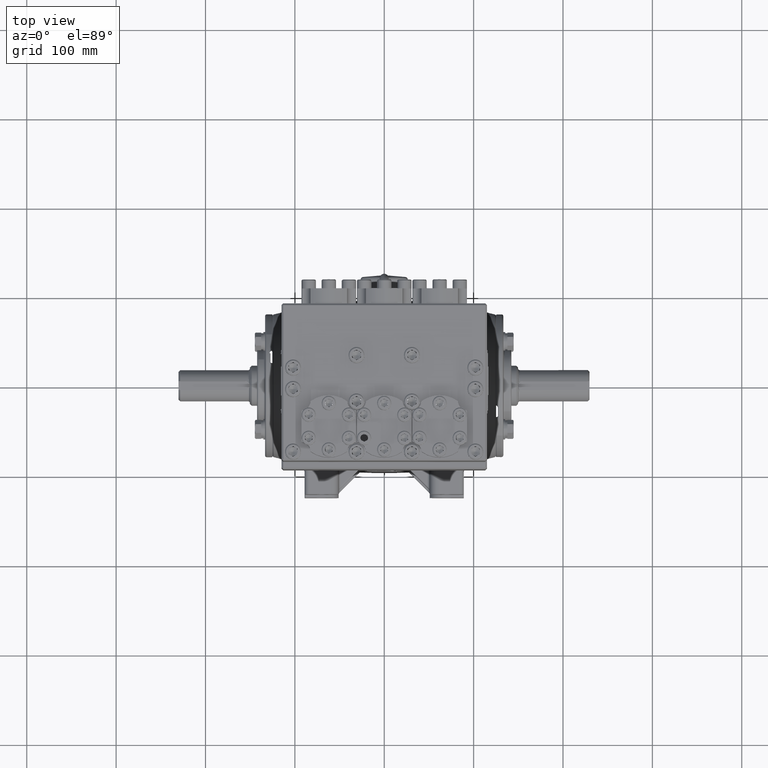
[diagram: clean part render]
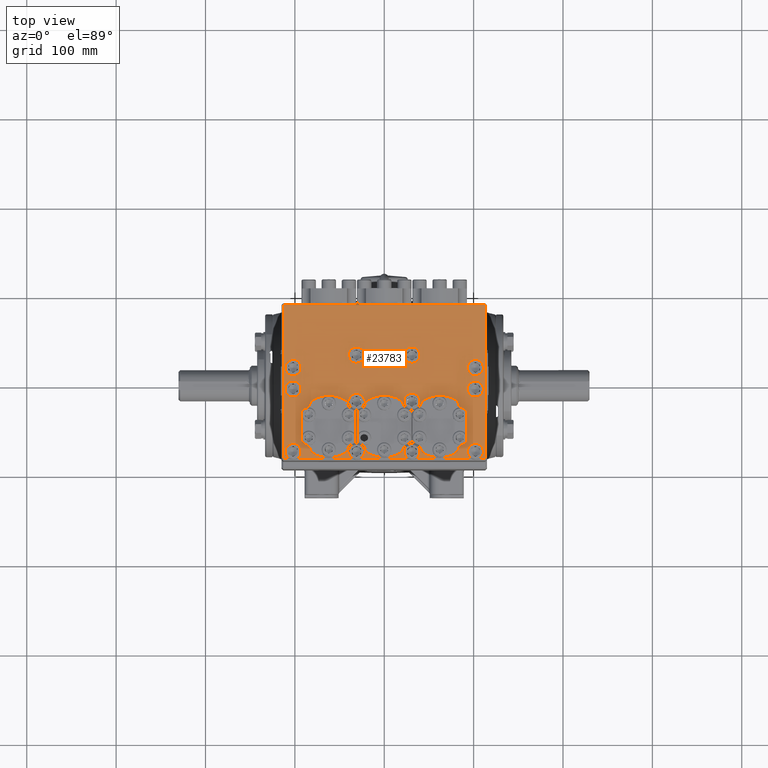
[diagram: same view with one face highlighted and labeled with its STEP entity id]
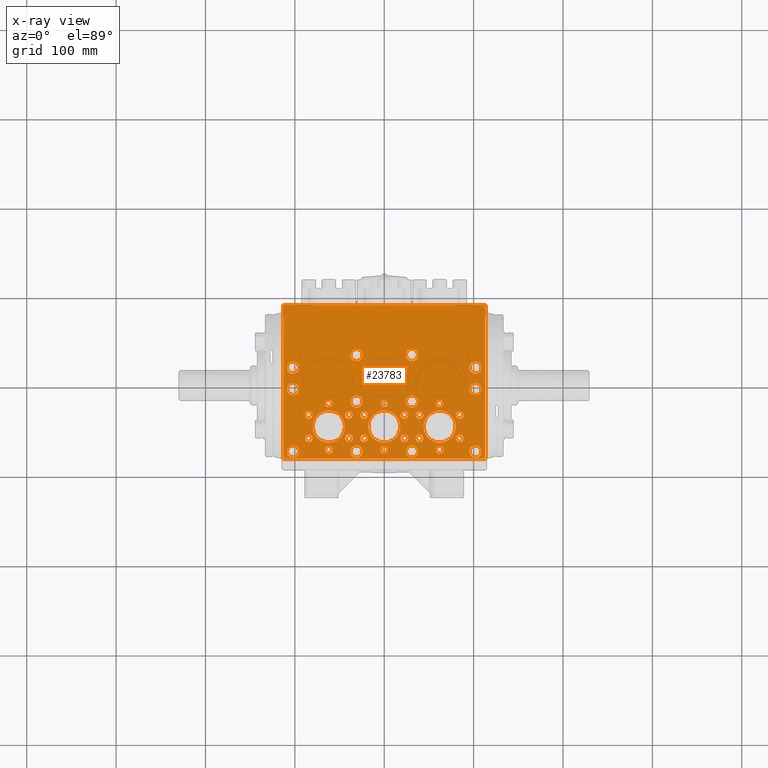
[diagram: x-ray of the same camera — body ghosted, the highlighted face saturated]
A machine part, top view. The second image highlights one B-rep face of the part: STEP entity #23783.
The next image is the same camera in x-ray: the body ghosted, the highlighted face saturated — about 0% of this face is hidden behind the body in this view.
In plain terms, the highlighted planar face has unit normal (0, 0, -1).
Its self-contained STEP definition (entity closure, byte-faithful):
#161 = VERTEX_POINT ( 'NONE', #108625 ) ;
#357 = EDGE_CURVE ( 'NONE', #52274, #112414, #93687, .T. ) ;
#363 = EDGE_LOOP ( 'NONE', ( #119264, #63017 ) ) ;
#537 = CIRCLE ( 'NONE', #69821, 0.7066929133858244061 ) ;
#617 = VECTOR ( 'NONE', #60796, 39.37007874015748143 ) ;
#685 = VERTEX_POINT ( 'NONE', #113962 ) ;
#868 = CARTESIAN_POINT ( 'NONE',  ( -1.554462185102545080, -2.637795275590553157, 18.66141732283464805 ) ) ;
#1078 = DIRECTION ( 'NONE',  ( -0.0000000000000000000, -0.0000000000000000000, 1.000000000000000000 ) ) ;
#1358 = DIRECTION ( 'NONE',  ( 0.0000000000000000000, 0.0000000000000000000, -1.000000000000000000 ) ) ;
#1406 = EDGE_CURVE ( 'NONE', #20298, #20736, #77539, .T. ) ;
#1628 = CARTESIAN_POINT ( 'NONE',  ( 4.281496062992125928, -3.228346456692912092, 18.66141732283464805 ) ) ;
#2121 = FACE_BOUND ( 'NONE', #120004, .T. ) ;
#2333 = ORIENTED_EDGE ( 'NONE', *, *, #103795, .F. ) ;
#2734 = FACE_BOUND ( 'NONE', #363, .T. ) ;
#3094 = CIRCLE ( 'NONE', #72360, 0.2657480314960625756 ) ;
#3340 = FACE_BOUND ( 'NONE', #40935, .T. ) ;
#3711 = ORIENTED_EDGE ( 'NONE', *, *, #6407, .F. ) ;
#3895 = VERTEX_POINT ( 'NONE', #65356 ) ;
#3914 = EDGE_CURVE ( 'NONE', #79926, #72712, #28242, .T. ) ;
#3994 = CARTESIAN_POINT ( 'NONE',  ( -4.281496062992125928, -0.4724409448818881474, 18.66141732283464805 ) ) ;
#4007 = VERTEX_POINT ( 'NONE', #114191 ) ;
#4056 = DIRECTION ( 'NONE',  ( -0.0000000000000000000, -0.0000000000000000000, 1.000000000000000000 ) ) ;
#4133 = LINE ( 'NONE', #41918, #103971 ) ;
#4289 = VERTEX_POINT ( 'NONE', #109616 ) ;
#4294 = ORIENTED_EDGE ( 'NONE', *, *, #76617, .F. ) ;
#5162 = EDGE_CURVE ( 'NONE', #115657, #79307, #102046, .T. ) ;
#5244 = CARTESIAN_POINT ( 'NONE',  ( 4.015748031496062076, 0.4724409448818914226, 18.66141732283464805 ) ) ;
#5315 = EDGE_LOOP ( 'NONE', ( #86806, #96678 ) ) ;
#5573 = DIRECTION ( 'NONE',  ( 1.000000000000000000, 0.0000000000000000000, 0.0000000000000000000 ) ) ;
#5626 = VERTEX_POINT ( 'NONE', #60654 ) ;
#6124 = ORIENTED_EDGE ( 'NONE', *, *, #66429, .F. ) ;
#6407 = EDGE_CURVE ( 'NONE', #50504, #111528, #60781, .T. ) ;
#6726 = DIRECTION ( 'NONE',  ( -0.0000000000000000000, -0.0000000000000000000, 1.000000000000000000 ) ) ;
#7185 = AXIS2_PLACEMENT_3D ( 'NONE', #119656, #34859, #72689 ) ;
#7414 = EDGE_CURVE ( 'NONE', #20736, #20298, #112345, .T. ) ;
#7607 = CARTESIAN_POINT ( 'NONE',  ( 0.9547244094488195332, -1.023622047244092892, 18.66141732283464805 ) ) ;
#7675 = AXIS2_PLACEMENT_3D ( 'NONE', #99893, #15011, #52813 ) ;
#7721 = CIRCLE ( 'NONE', #77026, 0.2657480314960625756 ) ;
#7844 = CARTESIAN_POINT ( 'NONE',  ( -3.750000000000000888, -0.4724409448818881474, 18.66141732283464805 ) ) ;
#7943 = AXIS2_PLACEMENT_3D ( 'NONE', #44399, #82242, #119885 ) ;
#8226 = CARTESIAN_POINT ( 'NONE',  ( -3.327427578676981579, -1.614173228346451161, 18.66141732283464805 ) ) ;
#8278 = ORIENTED_EDGE ( 'NONE', *, *, #11105, .F. ) ;
#8713 = CIRCLE ( 'NONE', #78006, 0.1673228346456689108 ) ;
#8751 = DIRECTION ( 'NONE',  ( -0.0000000000000000000, -0.0000000000000000000, 1.000000000000000000 ) ) ;
#8905 = CARTESIAN_POINT ( 'NONE',  ( -4.527559055118110187, -3.543307086614170931, 18.66141732283464805 ) ) ;
#9046 = EDGE_CURVE ( 'NONE', #15250, #685, #93789, .T. ) ;
#9426 = CARTESIAN_POINT ( 'NONE',  ( 4.015748031496062076, 0.4724409448818914226, 18.66141732283464805 ) ) ;
#9481 = EDGE_LOOP ( 'NONE', ( #75989, #29461 ) ) ;
#9658 = ORIENTED_EDGE ( 'NONE', *, *, #3914, .F. ) ;
#9747 = FACE_BOUND ( 'NONE', #34470, .T. ) ;
#10127 = ORIENTED_EDGE ( 'NONE', *, *, #76837, .F. ) ;
#10198 = DIRECTION ( 'NONE',  ( -0.0000000000000000000, -0.0000000000000000000, 1.000000000000000000 ) ) ;
#10320 = CARTESIAN_POINT ( 'NONE',  ( -3.327427578676985576, -2.637795275590547384, 18.66141732283464805 ) ) ;
#10419 = ORIENTED_EDGE ( 'NONE', *, *, #68227, .F. ) ;
#10468 = AXIS2_PLACEMENT_3D ( 'NONE', #97413, #12528, #50321 ) ;
#10609 = EDGE_CURVE ( 'NONE', #47791, #118664, #57403, .T. ) ;
#10711 = VERTEX_POINT ( 'NONE', #121926 ) ;
#11006 = EDGE_CURVE ( 'NONE', #50523, #97440, #29603, .T. ) ;
#11088 = EDGE_CURVE ( 'NONE', #72712, #79926, #76378, .T. ) ;
#11105 = EDGE_CURVE ( 'NONE', #39480, #161, #70449, .T. ) ;
#11297 = CARTESIAN_POINT ( 'NONE',  ( -1.486220472440944240, -3.228346456692912092, 18.66141732283464805 ) ) ;
#11390 = CARTESIAN_POINT ( 'NONE',  ( 4.015748031496062964, -3.228346456692912092, 18.66141732283464805 ) ) ;
#11905 = DIRECTION ( 'NONE',  ( -0.0000000000000000000, -0.0000000000000000000, 1.000000000000000000 ) ) ;
#12036 = FACE_BOUND ( 'NONE', #103052, .T. ) ;
#12528 = DIRECTION ( 'NONE',  ( -0.0000000000000000000, -0.0000000000000000000, 1.000000000000000000 ) ) ;
#12567 = EDGE_LOOP ( 'NONE', ( #39509, #105780 ) ) ;
#12645 = FACE_BOUND ( 'NONE', #45721, .T. ) ;
#12692 = CARTESIAN_POINT ( 'NONE',  ( 4.281496062992125040, 0.4724409448818914226, 18.66141732283464805 ) ) ;
#12848 = ORIENTED_EDGE ( 'NONE', *, *, #60742, .F. ) ;
#12940 = CIRCLE ( 'NONE', #82233, 0.1673228346456691606 ) ;
#13237 = DIRECTION ( 'NONE',  ( 1.000000000000000000, 0.0000000000000000000, 0.0000000000000000000 ) ) ;
#13586 = CARTESIAN_POINT ( 'NONE',  ( -2.608267716535432879, -3.149606299212596827, 18.66141732283464805 ) ) ;
#13723 = CARTESIAN_POINT ( 'NONE',  ( -4.015748031496062964, -0.4724409448818881474, 18.66141732283464805 ) ) ;
#13781 = EDGE_LOOP ( 'NONE', ( #92851, #56275 ) ) ;
#14293 = EDGE_CURVE ( 'NONE', #161, #39480, #97913, .T. ) ;
#14529 = EDGE_CURVE ( 'NONE', #4007, #18471, #119644, .T. ) ;
#14836 = EDGE_CURVE ( 'NONE', #95573, #26108, #84237, .T. ) ;
#14850 = VERTEX_POINT ( 'NONE', #76522 ) ;
#15011 = DIRECTION ( 'NONE',  ( -0.0000000000000000000, -0.0000000000000000000, 1.000000000000000000 ) ) ;
#15019 = AXIS2_PLACEMENT_3D ( 'NONE', #67686, #105424, #20572 ) ;
#15093 = CIRCLE ( 'NONE', #84377, 0.1673228346456691606 ) ;
#15148 = ORIENTED_EDGE ( 'NONE', *, *, #11006, .F. ) ;
#15197 = EDGE_CURVE ( 'NONE', #23354, #73191, #28851, .T. ) ;
#15250 = VERTEX_POINT ( 'NONE', #49065 ) ;
#15293 = DIRECTION ( 'NONE',  ( -1.000000000000000000, 0.0000000000000000000, 0.0000000000000000000 ) ) ;
#15480 = EDGE_LOOP ( 'NONE', ( #41800, #117904 ) ) ;
#15627 = CARTESIAN_POINT ( 'NONE',  ( -2.273622047244094446, -1.102362204724407935, 18.66141732283464805 ) ) ;
#15784 = VERTEX_POINT ( 'NONE', #31853 ) ;
#15928 = CARTESIAN_POINT ( 'NONE',  ( 1.387139350456876752, -2.637795275590553157, 18.66141732283464805 ) ) ;
#15948 = CARTESIAN_POINT ( 'NONE',  ( 3.494750413322655902, -2.637795275590546940, 18.66141732283464805 ) ) ;
#16151 = CIRCLE ( 'NONE', #85452, 0.7066929133858276257 ) ;
#16466 = CARTESIAN_POINT ( 'NONE',  ( 4.281496062992125040, -0.4724409448818881474, 18.66141732283464805 ) ) ;
#16804 = CIRCLE ( 'NONE', #86106, 0.2657480314960626866 ) ;
#17134 = EDGE_LOOP ( 'NONE', ( #69885, #42550 ) ) ;
#17251 = EDGE_LOOP ( 'NONE', ( #86509, #77207 ) ) ;
#17513 = DIRECTION ( 'NONE',  ( -0.0000000000000000000, -0.0000000000000000000, 1.000000000000000000 ) ) ;
#17720 = DIRECTION ( 'NONE',  ( -0.0000000000000000000, -0.0000000000000000000, 1.000000000000000000 ) ) ;
#17725 = ORIENTED_EDGE ( 'NONE', *, *, #54727, .F. ) ;
#17760 = VERTEX_POINT ( 'NONE', #65525 ) ;
#17951 = CARTESIAN_POINT ( 'NONE',  ( -1.220472440944881942, -1.023622047244092892, 18.66141732283464805 ) ) ;
#17970 = DIRECTION ( 'NONE',  ( -0.0000000000000000000, -0.0000000000000000000, 1.000000000000000000 ) ) ;
#18027 = DIRECTION ( 'NONE',  ( -0.0000000000000000000, -0.0000000000000000000, 1.000000000000000000 ) ) ;
#18125 = VERTEX_POINT ( 'NONE', #103115 ) ;
#18226 = DIRECTION ( 'NONE',  ( -0.0000000000000000000, -0.0000000000000000000, 1.000000000000000000 ) ) ;
#18240 = DIRECTION ( 'NONE',  ( -0.0000000000000000000, -0.0000000000000000000, 1.000000000000000000 ) ) ;
#18382 = CIRCLE ( 'NONE', #87705, 0.7066929133858276257 ) ;
#18471 = VERTEX_POINT ( 'NONE', #91876 ) ;
#18560 = DIRECTION ( 'NONE',  ( -0.0000000000000000000, -0.0000000000000000000, 1.000000000000000000 ) ) ;
#18837 = AXIS2_PLACEMENT_3D ( 'NONE', #66754, #104495, #19640 ) ;
#19228 = DIRECTION ( 'NONE',  ( -0.0000000000000000000, -0.0000000000000000000, 1.000000000000000000 ) ) ;
#19640 = DIRECTION ( 'NONE',  ( 1.000000000000000000, 0.0000000000000000000, 0.0000000000000000000 ) ) ;
#19681 = DIRECTION ( 'NONE',  ( 1.000000000000000000, 0.0000000000000000000, 0.0000000000000000000 ) ) ;
#19715 = ORIENTED_EDGE ( 'NONE', *, *, #32558, .F. ) ;
#20276 = VERTEX_POINT ( 'NONE', #87695 ) ;
#20298 = VERTEX_POINT ( 'NONE', #116067 ) ;
#20516 = DIRECTION ( 'NONE',  ( 1.000000000000000000, 0.0000000000000000000, 0.0000000000000000000 ) ) ;
#20572 = DIRECTION ( 'NONE',  ( 1.000000000000000000, 0.0000000000000000000, 0.0000000000000000000 ) ) ;
#20685 = EDGE_CURVE ( 'NONE', #103901, #39622, #92776, .T. ) ;
#20728 = DIRECTION ( 'NONE',  ( 1.000000000000000000, 0.0000000000000000000, 0.0000000000000000000 ) ) ;
#20736 = VERTEX_POINT ( 'NONE', #15627 ) ;
#20919 = EDGE_CURVE ( 'NONE', #78380, #30086, #27226, .T. ) ;
#21326 = DIRECTION ( 'NONE',  ( 1.000000000000000000, 0.0000000000000000000, 0.0000000000000000000 ) ) ;
#21334 = FACE_BOUND ( 'NONE', #53406, .T. ) ;
#21471 = EDGE_CURVE ( 'NONE', #30155, #46605, #37040, .T. ) ;
#21561 = CARTESIAN_POINT ( 'NONE',  ( -6.227907111816682807E-17, -2.125984251968502381, 18.66141732283464805 ) ) ;
#21606 = DIRECTION ( 'NONE',  ( 1.000000000000000000, 0.0000000000000000000, 0.0000000000000000000 ) ) ;
#21629 = DIRECTION ( 'NONE',  ( -0.0000000000000000000, -0.0000000000000000000, 1.000000000000000000 ) ) ;
#21937 = FACE_BOUND ( 'NONE', #118184, .T. ) ;
#22166 = DIRECTION ( 'NONE',  ( -1.000000000000000000, 0.0000000000000000000, 0.0000000000000000000 ) ) ;
#22194 = AXIS2_PLACEMENT_3D ( 'NONE', #29299, #67132, #104874 ) ;
#22298 = CIRCLE ( 'NONE', #91568, 0.2657480314960626866 ) ;
#22545 = DIRECTION ( 'NONE',  ( -1.000000000000000000, 0.0000000000000000000, -0.0000000000000000000 ) ) ;
#22686 = CIRCLE ( 'NONE', #91948, 0.1673228346456691606 ) ;
#22778 = CARTESIAN_POINT ( 'NONE',  ( -3.160104744031312585, -1.614173228346451161, 18.66141732283464805 ) ) ;
#22905 = AXIS2_PLACEMENT_3D ( 'NONE', #24626, #62456, #100222 ) ;
#22975 = CARTESIAN_POINT ( 'NONE',  ( 4.448818897637796255, 3.307086614173230465, 18.66141732283464805 ) ) ;
#23201 = VERTEX_POINT ( 'NONE', #110829 ) ;
#23307 = EDGE_CURVE ( 'NONE', #30086, #78380, #28763, .T. ) ;
#23354 = VERTEX_POINT ( 'NONE', #113293 ) ;
#23413 = DIRECTION ( 'NONE',  ( -0.0000000000000000000, -0.0000000000000000000, 1.000000000000000000 ) ) ;
#23619 = DIRECTION ( 'NONE',  ( -0.0000000000000000000, -0.0000000000000000000, 1.000000000000000000 ) ) ;
#23783 = ADVANCED_FACE ( 'NONE', ( #94638, #9747, #47544, #85371, #2121, #39902, #77748, #115435, #30613, #68449, #106180, #21334, #59138, #96926, #12036, #49831, #87669, #2734, #40520, #78364, #116040, #31218, #69068, #106784, #21937, #59742, #97528, #12645, #50435, #88272, #3340, #41123, #78982, #116644 ), #31839, .F. ) ;
#24626 = CARTESIAN_POINT ( 'NONE',  ( 2.440944881889763884, -3.149606299212596383, 18.66141732283464805 ) ) ;
#25382 = DIRECTION ( 'NONE',  ( 1.000000000000000000, 0.0000000000000000000, 0.0000000000000000000 ) ) ;
#25489 = AXIS2_PLACEMENT_3D ( 'NONE', #120928, #36125, #73968 ) ;
#25704 = CIRCLE ( 'NONE', #94998, 0.7066929133858244061 ) ;
#25963 = AXIS2_PLACEMENT_3D ( 'NONE', #868, #38638, #76485 ) ;
#26108 = VERTEX_POINT ( 'NONE', #70184 ) ;
#26315 = AXIS2_PLACEMENT_3D ( 'NONE', #93643, #8751, #46546 ) ;
#26317 = CARTESIAN_POINT ( 'NONE',  ( 1.486220472440944684, 1.023622047244096001, 18.66141732283464805 ) ) ;
#26401 = CARTESIAN_POINT ( 'NONE',  ( 4.448818897637796255, 3.228346456692915645, 18.66141732283464805 ) ) ;
#26680 = ORIENTED_EDGE ( 'NONE', *, *, #9046, .T. ) ;
#26716 = DIRECTION ( 'NONE',  ( 1.000000000000000000, 0.0000000000000000000, 0.0000000000000000000 ) ) ;
#26754 = AXIS2_PLACEMENT_3D ( 'NONE', #68727, #106447, #21606 ) ;
#26881 = DIRECTION ( 'NONE',  ( 1.000000000000000000, 0.0000000000000000000, 0.0000000000000000000 ) ) ;
#27226 = CIRCLE ( 'NONE', #118141, 0.2657480314960626866 ) ;
#27416 = CIRCLE ( 'NONE', #96704, 0.1673228346456691606 ) ;
#27853 = DIRECTION ( 'NONE',  ( 1.000000000000000000, 0.0000000000000000000, 0.0000000000000000000 ) ) ;
#28242 = CIRCLE ( 'NONE', #59840, 0.1673228346456691606 ) ;
#28557 = DIRECTION ( 'NONE',  ( 0.0000000000000000000, 0.0000000000000000000, -1.000000000000000000 ) ) ;
#28661 = AXIS2_PLACEMENT_3D ( 'NONE', #11390, #49179, #87026 ) ;
#28763 = CIRCLE ( 'NONE', #76456, 0.2657480314960626866 ) ;
#28846 = DIRECTION ( 'NONE',  ( 1.000000000000000000, 0.0000000000000000000, 0.0000000000000000000 ) ) ;
#28851 = CIRCLE ( 'NONE', #60526, 0.2657480314960626866 ) ;
#28956 = EDGE_LOOP ( 'NONE', ( #26680, #102275, #55806, #46518 ) ) ;
#29299 = CARTESIAN_POINT ( 'NONE',  ( 3.327427578676981579, -1.614173228346450273, 18.66141732283464805 ) ) ;
#29452 = CARTESIAN_POINT ( 'NONE',  ( -4.448818897637796255, 3.307086614173230465, 18.66141732283464805 ) ) ;
#29461 = ORIENTED_EDGE ( 'NONE', *, *, #87314, .F. ) ;
#29603 = CIRCLE ( 'NONE', #67233, 0.2657480314960625756 ) ;
#29639 = AXIS2_PLACEMENT_3D ( 'NONE', #66791, #104529, #19681 ) ;
#30086 = VERTEX_POINT ( 'NONE', #34920 ) ;
#30155 = VERTEX_POINT ( 'NONE', #96226 ) ;
#30293 = CARTESIAN_POINT ( 'NONE',  ( 1.486220472440944684, -1.023622047244092892, 18.66141732283464805 ) ) ;
#30310 = EDGE_CURVE ( 'NONE', #111528, #50504, #7721, .T. ) ;
#30478 = EDGE_LOOP ( 'NONE', ( #110466, #91962 ) ) ;
#30613 = FACE_BOUND ( 'NONE', #121099, .T. ) ;
#30635 = AXIS2_PLACEMENT_3D ( 'NONE', #102588, #17720, #55512 ) ;
#30670 = VERTEX_POINT ( 'NONE', #26401 ) ;
#30963 = DIRECTION ( 'NONE',  ( 0.0000000000000000000, 0.0000000000000000000, -1.000000000000000000 ) ) ;
#31112 = CIRCLE ( 'NONE', #116142, 0.1673228346456691606 ) ;
#31218 = FACE_BOUND ( 'NONE', #9481, .T. ) ;
#31359 = CIRCLE ( 'NONE', #100608, 0.1673228346456691606 ) ;
#31839 = PLANE ( 'NONE',  #105939 ) ;
#31853 = CARTESIAN_POINT ( 'NONE',  ( 0.9547244094488195332, -3.228346456692912092, 18.66141732283464805 ) ) ;
#32057 = VERTEX_POINT ( 'NONE', #36182 ) ;
#32059 = EDGE_CURVE ( 'NONE', #44697, #111063, #35650, .T. ) ;
#32174 = AXIS2_PLACEMENT_3D ( 'NONE', #43766, #81615, #119265 ) ;
#32236 = CARTESIAN_POINT ( 'NONE',  ( -4.281496062992125928, -3.228346456692912092, 18.66141732283464805 ) ) ;
#32539 = CARTESIAN_POINT ( 'NONE',  ( -6.227907111816682807E-17, -1.102362204724407935, 18.66141732283464805 ) ) ;
#32558 = EDGE_CURVE ( 'NONE', #10711, #3895, #116794, .T. ) ;
#32947 = DIRECTION ( 'NONE',  ( 1.000000000000000000, 0.0000000000000000000, 0.0000000000000000000 ) ) ;
#33252 = ORIENTED_EDGE ( 'NONE', *, *, #77756, .F. ) ;
#33597 = CARTESIAN_POINT ( 'NONE',  ( 2.273622047244094890, -3.149606299212596383, 18.66141732283464805 ) ) ;
#34092 = CARTESIAN_POINT ( 'NONE',  ( -1.220472440944881942, 1.023622047244096001, 18.66141732283464805 ) ) ;
#34163 = DIRECTION ( 'NONE',  ( -0.0000000000000000000, -0.0000000000000000000, 1.000000000000000000 ) ) ;
#34188 = AXIS2_PLACEMENT_3D ( 'NONE', #13723, #51509, #89344 ) ;
#34269 = DIRECTION ( 'NONE',  ( 1.000000000000000000, 0.0000000000000000000, 0.0000000000000000000 ) ) ;
#34470 = EDGE_LOOP ( 'NONE', ( #69572, #50933 ) ) ;
#34538 = DIRECTION ( 'NONE',  ( -0.0000000000000000000, -0.0000000000000000000, 1.000000000000000000 ) ) ;
#34609 = ORIENTED_EDGE ( 'NONE', *, *, #50153, .F. ) ;
#34826 = CARTESIAN_POINT ( 'NONE',  ( -0.1673228346456689664, -3.149606299212596827, 18.66141732283464805 ) ) ;
#34859 = DIRECTION ( 'NONE',  ( -0.0000000000000000000, -0.0000000000000000000, 1.000000000000000000 ) ) ;
#34920 = CARTESIAN_POINT ( 'NONE',  ( 3.749999999999999556, -0.4724409448818881474, 18.66141732283464805 ) ) ;
#35162 = AXIS2_PLACEMENT_3D ( 'NONE', #102381, #17513, #55316 ) ;
#35226 = CARTESIAN_POINT ( 'NONE',  ( -1.220472440944881942, 1.023622047244096001, 18.66141732283464805 ) ) ;
#35346 = CARTESIAN_POINT ( 'NONE',  ( 2.273622047244094446, -1.102362204724407269, 18.66141732283464805 ) ) ;
#35508 = AXIS2_PLACEMENT_3D ( 'NONE', #86278, #1358, #39138 ) ;
#35650 = CIRCLE ( 'NONE', #104912, 0.2657480314960625756 ) ;
#35789 = AXIS2_PLACEMENT_3D ( 'NONE', #73851, #111557, #26716 ) ;
#35822 = ORIENTED_EDGE ( 'NONE', *, *, #40738, .F. ) ;
#35910 = DIRECTION ( 'NONE',  ( -0.0000000000000000000, -0.0000000000000000000, 1.000000000000000000 ) ) ;
#36125 = DIRECTION ( 'NONE',  ( -0.0000000000000000000, -0.0000000000000000000, 1.000000000000000000 ) ) ;
#36182 = CARTESIAN_POINT ( 'NONE',  ( -3.494750413322655014, -2.637795275590547384, 18.66141732283464805 ) ) ;
#36333 = CARTESIAN_POINT ( 'NONE',  ( -1.486220472440944684, -1.023622047244092892, 18.66141732283464805 ) ) ;
#36497 = CARTESIAN_POINT ( 'NONE',  ( -0.8864826968503936033, -1.614173228346456712, 18.66141732283464805 ) ) ;
#36606 = CIRCLE ( 'NONE', #105849, 0.1673228346456691606 ) ;
#36699 = CARTESIAN_POINT ( 'NONE',  ( -2.440944881889763440, -1.102362204724407935, 18.66141732283464805 ) ) ;
#37040 = CIRCLE ( 'NONE', #108552, 0.1673228346456691606 ) ;
#37100 = AXIS2_PLACEMENT_3D ( 'NONE', #68441, #106171, #21326 ) ;
#37919 = CIRCLE ( 'NONE', #107149, 0.1673228346456691606 ) ;
#38158 = EDGE_CURVE ( 'NONE', #79307, #115657, #97582, .T. ) ;
#38162 = AXIS2_PLACEMENT_3D ( 'NONE', #60342, #98118, #13237 ) ;
#38326 = VERTEX_POINT ( 'NONE', #15928 ) ;
#38459 = CARTESIAN_POINT ( 'NONE',  ( 1.220472440944881942, -1.023622047244092892, 18.66141732283464805 ) ) ;
#38638 = DIRECTION ( 'NONE',  ( -0.0000000000000000000, -0.0000000000000000000, 1.000000000000000000 ) ) ;
#38699 = VERTEX_POINT ( 'NONE', #56001 ) ;
#38777 = CARTESIAN_POINT ( 'NONE',  ( 3.147637795275588068, -2.125984251968502381, 18.66141732283464805 ) ) ;
#38855 = DIRECTION ( 'NONE',  ( 1.000000000000000000, 0.0000000000000000000, 0.0000000000000000000 ) ) ;
#39050 = VERTEX_POINT ( 'NONE', #45340 ) ;
#39138 = DIRECTION ( 'NONE',  ( -1.000000000000000000, 0.0000000000000000000, 0.0000000000000000000 ) ) ;
#39195 = CARTESIAN_POINT ( 'NONE',  ( -0.1673228346456692439, -1.102362204724407935, 18.66141732283464805 ) ) ;
#39480 = VERTEX_POINT ( 'NONE', #1628 ) ;
#39509 = ORIENTED_EDGE ( 'NONE', *, *, #39617, .F. ) ;
#39617 = EDGE_CURVE ( 'NONE', #23201, #5626, #52275, .T. ) ;
#39622 = VERTEX_POINT ( 'NONE', #70391 ) ;
#39755 = CARTESIAN_POINT ( 'NONE',  ( 2.608267716535433323, -3.149606299212596383, 18.66141732283464805 ) ) ;
#39902 = FACE_BOUND ( 'NONE', #5315, .T. ) ;
#40210 = CIRCLE ( 'NONE', #109409, 0.2657480314960624090 ) ;
#40520 = FACE_BOUND ( 'NONE', #41191, .T. ) ;
#40585 = ORIENTED_EDGE ( 'NONE', *, *, #14529, .F. ) ;
#40738 = EDGE_CURVE ( 'NONE', #60366, #45032, #36606, .T. ) ;
#40928 = VERTEX_POINT ( 'NONE', #112394 ) ;
#40935 = EDGE_LOOP ( 'NONE', ( #10127, #78129 ) ) ;
#41123 = FACE_BOUND ( 'NONE', #42519, .T. ) ;
#41191 = EDGE_LOOP ( 'NONE', ( #54307, #120486 ) ) ;
#41546 = AXIS2_PLACEMENT_3D ( 'NONE', #61987, #90487, #5573 ) ;
#41800 = ORIENTED_EDGE ( 'NONE', *, *, #20919, .F. ) ;
#41840 = DIRECTION ( 'NONE',  ( 1.000000000000000000, 0.0000000000000000000, 0.0000000000000000000 ) ) ;
#41918 = CARTESIAN_POINT ( 'NONE',  ( -4.527559055118110187, 3.228346456692915645, 18.66141732283464805 ) ) ;
#42519 = EDGE_LOOP ( 'NONE', ( #3711, #107760 ) ) ;
#42550 = ORIENTED_EDGE ( 'NONE', *, *, #92700, .F. ) ;
#42634 = AXIS2_PLACEMENT_3D ( 'NONE', #103429, #18560, #56365 ) ;
#42708 = ORIENTED_EDGE ( 'NONE', *, *, #120945, .F. ) ;
#43032 = DIRECTION ( 'NONE',  ( -0.0000000000000000000, -0.0000000000000000000, 1.000000000000000000 ) ) ;
#43112 = EDGE_LOOP ( 'NONE', ( #52153, #44675 ) ) ;
#43158 = CARTESIAN_POINT ( 'NONE',  ( -1.721785019748210965, -1.614173228346457156, 18.66141732283464805 ) ) ;
#43535 = CARTESIAN_POINT ( 'NONE',  ( 0.8864826968503939364, -2.637795275590553601, 18.66141732283464805 ) ) ;
#43553 = CIRCLE ( 'NONE', #112775, 0.1673228346456691606 ) ;
#43766 = CARTESIAN_POINT ( 'NONE',  ( 3.327427578676986464, -2.637795275590546940, 18.66141732283464805 ) ) ;
#43815 = CARTESIAN_POINT ( 'NONE',  ( 4.015748031496062964, -3.228346456692912092, 18.66141732283464805 ) ) ;
#43851 = VERTEX_POINT ( 'NONE', #69737 ) ;
#43915 = CARTESIAN_POINT ( 'NONE',  ( 1.734251968503939478, -2.125984251968502381, 18.66141732283464805 ) ) ;
#44018 = EDGE_CURVE ( 'NONE', #97870, #89494, #31112, .T. ) ;
#44129 = AXIS2_PLACEMENT_3D ( 'NONE', #69307, #107014, #22166 ) ;
#44254 = CIRCLE ( 'NONE', #113461, 0.1673228346456694382 ) ;
#44399 = CARTESIAN_POINT ( 'NONE',  ( 1.220472440944882164, 1.023622047244096001, 18.66141732283464805 ) ) ;
#44460 = AXIS2_PLACEMENT_3D ( 'NONE', #10320, #48108, #85942 ) ;
#44507 = DIRECTION ( 'NONE',  ( 1.000000000000000000, 0.0000000000000000000, 0.0000000000000000000 ) ) ;
#44675 = ORIENTED_EDGE ( 'NONE', *, *, #38158, .T. ) ;
#44697 = VERTEX_POINT ( 'NONE', #7607 ) ;
#44715 = EDGE_CURVE ( 'NONE', #32057, #38699, #88652, .T. ) ;
#44762 = CIRCLE ( 'NONE', #7185, 0.1673228346456691606 ) ;
#45032 = VERTEX_POINT ( 'NONE', #108162 ) ;
#45340 = CARTESIAN_POINT ( 'NONE',  ( 0.1673228346456693827, -3.149606299212596827, 18.66141732283464805 ) ) ;
#45721 = EDGE_LOOP ( 'NONE', ( #81465, #119725 ) ) ;
#45896 = AXIS2_PLACEMENT_3D ( 'NONE', #17951, #55749, #93554 ) ;
#46025 = DIRECTION ( 'NONE',  ( -0.0000000000000000000, -0.0000000000000000000, 1.000000000000000000 ) ) ;
#46364 = VERTEX_POINT ( 'NONE', #3994 ) ;
#46518 = ORIENTED_EDGE ( 'NONE', *, *, #115231, .T. ) ;
#46546 = DIRECTION ( 'NONE',  ( 1.000000000000000000, 0.0000000000000000000, 0.0000000000000000000 ) ) ;
#46605 = VERTEX_POINT ( 'NONE', #39195 ) ;
#46697 = DIRECTION ( 'NONE',  ( 1.000000000000000000, 0.0000000000000000000, 0.0000000000000000000 ) ) ;
#47228 = DIRECTION ( 'NONE',  ( -0.0000000000000000000, -0.0000000000000000000, 1.000000000000000000 ) ) ;
#47544 = FACE_BOUND ( 'NONE', #43112, .T. ) ;
#47791 = VERTEX_POINT ( 'NONE', #32236 ) ;
#47992 = DIRECTION ( 'NONE',  ( 1.000000000000000000, 0.0000000000000000000, 0.0000000000000000000 ) ) ;
#48108 = DIRECTION ( 'NONE',  ( -0.0000000000000000000, -0.0000000000000000000, 1.000000000000000000 ) ) ;
#48207 = VERTEX_POINT ( 'NONE', #15948 ) ;
#48592 = AXIS2_PLACEMENT_3D ( 'NONE', #120712, #35910, #73744 ) ;
#49065 = CARTESIAN_POINT ( 'NONE',  ( -4.448818897637796255, -3.543307086614170931, 18.66141732283464805 ) ) ;
#49179 = DIRECTION ( 'NONE',  ( -0.0000000000000000000, -0.0000000000000000000, 1.000000000000000000 ) ) ;
#49690 = DIRECTION ( 'NONE',  ( 1.000000000000000000, 0.0000000000000000000, 0.0000000000000000000 ) ) ;
#49831 = FACE_BOUND ( 'NONE', #17134, .T. ) ;
#49857 = CARTESIAN_POINT ( 'NONE',  ( -3.750000000000000888, -3.228346456692912092, 18.66141732283464805 ) ) ;
#49896 = EDGE_LOOP ( 'NONE', ( #42708, #118209 ) ) ;
#49898 = ORIENTED_EDGE ( 'NONE', *, *, #89445, .F. ) ;
#50153 = EDGE_CURVE ( 'NONE', #45032, #60366, #43553, .T. ) ;
#50287 = AXIS2_PLACEMENT_3D ( 'NONE', #108451, #23619, #61432 ) ;
#50321 = DIRECTION ( 'NONE',  ( 1.000000000000000000, 0.0000000000000000000, 0.0000000000000000000 ) ) ;
#50422 = EDGE_CURVE ( 'NONE', #76084, #57170, #57483, .T. ) ;
#50435 = FACE_BOUND ( 'NONE', #30478, .T. ) ;
#50504 = VERTEX_POINT ( 'NONE', #105440 ) ;
#50523 = VERTEX_POINT ( 'NONE', #11297 ) ;
#50933 = ORIENTED_EDGE ( 'NONE', *, *, #64651, .T. ) ;
#51509 = DIRECTION ( 'NONE',  ( -0.0000000000000000000, -0.0000000000000000000, 1.000000000000000000 ) ) ;
#51921 = EDGE_CURVE ( 'NONE', #40928, #60733, #16151, .T. ) ;
#52153 = ORIENTED_EDGE ( 'NONE', *, *, #5162, .T. ) ;
#52274 = VERTEX_POINT ( 'NONE', #101981 ) ;
#52275 = CIRCLE ( 'NONE', #121443, 0.1673228346456691606 ) ;
#52813 = DIRECTION ( 'NONE',  ( 1.000000000000000000, 0.0000000000000000000, 0.0000000000000000000 ) ) ;
#53406 = EDGE_LOOP ( 'NONE', ( #84816, #113818 ) ) ;
#53714 = EDGE_CURVE ( 'NONE', #43851, #84347, #91611, .T. ) ;
#54307 = ORIENTED_EDGE ( 'NONE', *, *, #93135, .F. ) ;
#54727 = EDGE_CURVE ( 'NONE', #108634, #48207, #44254, .T. ) ;
#55029 = EDGE_CURVE ( 'NONE', #57170, #76084, #8713, .T. ) ;
#55129 = EDGE_CURVE ( 'NONE', #5626, #23201, #103686, .T. ) ;
#55316 = DIRECTION ( 'NONE',  ( 1.000000000000000000, 0.0000000000000000000, 0.0000000000000000000 ) ) ;
#55512 = DIRECTION ( 'NONE',  ( 1.000000000000000000, 0.0000000000000000000, 0.0000000000000000000 ) ) ;
#55749 = DIRECTION ( 'NONE',  ( -0.0000000000000000000, -0.0000000000000000000, 1.000000000000000000 ) ) ;
#55766 = DIRECTION ( 'NONE',  ( 1.000000000000000000, 0.0000000000000000000, 0.0000000000000000000 ) ) ;
#55806 = ORIENTED_EDGE ( 'NONE', *, *, #99786, .T. ) ;
#55829 = DIRECTION ( 'NONE',  ( 1.000000000000000000, 0.0000000000000000000, 0.0000000000000000000 ) ) ;
#56001 = CARTESIAN_POINT ( 'NONE',  ( -3.160104744031316137, -2.637795275590547384, 18.66141732283464805 ) ) ;
#56025 = DIRECTION ( 'NONE',  ( 1.000000000000000000, 0.0000000000000000000, 0.0000000000000000000 ) ) ;
#56036 = DIRECTION ( 'NONE',  ( 1.000000000000000000, 0.0000000000000000000, 0.0000000000000000000 ) ) ;
#56275 = ORIENTED_EDGE ( 'NONE', *, *, #14836, .F. ) ;
#56365 = DIRECTION ( 'NONE',  ( 1.000000000000000000, 0.0000000000000000000, 0.0000000000000000000 ) ) ;
#57030 = DIRECTION ( 'NONE',  ( 1.000000000000000000, 0.0000000000000000000, 0.0000000000000000000 ) ) ;
#57085 = CARTESIAN_POINT ( 'NONE',  ( -1.721785019748214296, -2.637795275590553157, 18.66141732283464805 ) ) ;
#57170 = VERTEX_POINT ( 'NONE', #22778 ) ;
#57403 = CIRCLE ( 'NONE', #41546, 0.2657480314960626866 ) ;
#57483 = CIRCLE ( 'NONE', #73298, 0.1673228346456689108 ) ;
#58155 = CARTESIAN_POINT ( 'NONE',  ( -1.053805531496062819, -1.614173228346456712, 18.66141732283464805 ) ) ;
#59138 = FACE_BOUND ( 'NONE', #87584, .T. ) ;
#59354 = DIRECTION ( 'NONE',  ( 0.0000000000000000000, 0.0000000000000000000, -1.000000000000000000 ) ) ;
#59426 = DIRECTION ( 'NONE',  ( 1.000000000000000000, 0.0000000000000000000, 0.0000000000000000000 ) ) ;
#59742 = FACE_BOUND ( 'NONE', #15480, .T. ) ;
#59840 = AXIS2_PLACEMENT_3D ( 'NONE', #103096, #18226, #56025 ) ;
#60342 = CARTESIAN_POINT ( 'NONE',  ( 0.8864826968503939364, -1.614173228346456712, 18.66141732283464805 ) ) ;
#60366 = VERTEX_POINT ( 'NONE', #43158 ) ;
#60424 = ORIENTED_EDGE ( 'NONE', *, *, #15197, .F. ) ;
#60526 = AXIS2_PLACEMENT_3D ( 'NONE', #9426, #47228, #85063 ) ;
#60574 = CARTESIAN_POINT ( 'NONE',  ( 3.160104744031317026, -2.637795275590546940, 18.66141732283464805 ) ) ;
#60654 = CARTESIAN_POINT ( 'NONE',  ( -1.053805531496062819, -2.637795275590553601, 18.66141732283464805 ) ) ;
#60733 = VERTEX_POINT ( 'NONE', #65163 ) ;
#60742 = EDGE_CURVE ( 'NONE', #97241, #39050, #27416, .T. ) ;
#60781 = CIRCLE ( 'NONE', #68684, 0.2657480314960625756 ) ;
#60796 = DIRECTION ( 'NONE',  ( 0.0000000000000000000, 1.000000000000000000, 0.0000000000000000000 ) ) ;
#61232 = DIRECTION ( 'NONE',  ( 1.000000000000000000, 0.0000000000000000000, 0.0000000000000000000 ) ) ;
#61322 = ORIENTED_EDGE ( 'NONE', *, *, #73955, .F. ) ;
#61398 = CIRCLE ( 'NONE', #7943, 0.2657480314960624090 ) ;
#61432 = DIRECTION ( 'NONE',  ( 1.000000000000000000, 0.0000000000000000000, 0.0000000000000000000 ) ) ;
#61749 = EDGE_LOOP ( 'NONE', ( #49898, #40585 ) ) ;
#61987 = CARTESIAN_POINT ( 'NONE',  ( -4.015748031496062964, -3.228346456692912092, 18.66141732283464805 ) ) ;
#62405 = CARTESIAN_POINT ( 'NONE',  ( -6.227907111816682807E-17, -2.125984251968502381, 18.66141732283464805 ) ) ;
#62456 = DIRECTION ( 'NONE',  ( -0.0000000000000000000, -0.0000000000000000000, 1.000000000000000000 ) ) ;
#63017 = ORIENTED_EDGE ( 'NONE', *, *, #73664, .F. ) ;
#63274 = EDGE_LOOP ( 'NONE', ( #107134, #97876 ) ) ;
#63474 = AXIS2_PLACEMENT_3D ( 'NONE', #102852, #17970, #55766 ) ;
#64651 = EDGE_CURVE ( 'NONE', #76685, #17760, #25704, .T. ) ;
#64796 = VERTEX_POINT ( 'NONE', #90923 ) ;
#64840 = EDGE_CURVE ( 'NONE', #20276, #68957, #61398, .T. ) ;
#65163 = CARTESIAN_POINT ( 'NONE',  ( -3.147637795275591621, -2.125984251968502381, 18.66141732283464805 ) ) ;
#65356 = CARTESIAN_POINT ( 'NONE',  ( 0.7191598622047247202, -2.637795275590553601, 18.66141732283464805 ) ) ;
#65525 = CARTESIAN_POINT ( 'NONE',  ( -0.7066929133858244061, -2.125984251968502381, 18.66141732283464805 ) ) ;
#65554 = EDGE_LOOP ( 'NONE', ( #108664, #15148 ) ) ;
#66383 = DIRECTION ( 'NONE',  ( -1.000000000000000000, 0.0000000000000000000, 0.0000000000000000000 ) ) ;
#66429 = EDGE_CURVE ( 'NONE', #89494, #97870, #79458, .T. ) ;
#66754 = CARTESIAN_POINT ( 'NONE',  ( -4.015748031496062964, 0.4724409448818914226, 18.66141732283464805 ) ) ;
#66791 = CARTESIAN_POINT ( 'NONE',  ( 1.554462185102545968, -2.637795275590553157, 18.66141732283464805 ) ) ;
#67042 = CIRCLE ( 'NONE', #82863, 0.1673228346456691606 ) ;
#67132 = DIRECTION ( 'NONE',  ( -0.0000000000000000000, -0.0000000000000000000, 1.000000000000000000 ) ) ;
#67233 = AXIS2_PLACEMENT_3D ( 'NONE', #108252, #23413, #61232 ) ;
#67285 = DIRECTION ( 'NONE',  ( 0.0000000000000000000, -1.000000000000000000, 0.0000000000000000000 ) ) ;
#67622 = CARTESIAN_POINT ( 'NONE',  ( 4.015748031496062076, -0.4724409448818881474, 18.66141732283464805 ) ) ;
#67676 = CARTESIAN_POINT ( 'NONE',  ( -1.486220472440944684, 1.023622047244096001, 18.66141732283464805 ) ) ;
#67686 = CARTESIAN_POINT ( 'NONE',  ( 0.8864826968503939364, -1.614173228346456712, 18.66141732283464805 ) ) ;
#67844 = CARTESIAN_POINT ( 'NONE',  ( -1.387139350456876086, -2.637795275590553157, 18.66141732283464805 ) ) ;
#67853 = CARTESIAN_POINT ( 'NONE',  ( 3.327427578676986464, -2.637795275590546940, 18.66141732283464805 ) ) ;
#68227 = EDGE_CURVE ( 'NONE', #3895, #10711, #99476, .T. ) ;
#68441 = CARTESIAN_POINT ( 'NONE',  ( 1.220472440944881942, -3.228346456692912092, 18.66141732283464805 ) ) ;
#68449 = FACE_BOUND ( 'NONE', #114000, .T. ) ;
#68474 = CIRCLE ( 'NONE', #15019, 0.1673228346456691606 ) ;
#68524 = EDGE_CURVE ( 'NONE', #685, #30670, #79412, .T. ) ;
#68620 = VERTEX_POINT ( 'NONE', #109628 ) ;
#68684 = AXIS2_PLACEMENT_3D ( 'NONE', #34092, #71917, #109626 ) ;
#68727 = CARTESIAN_POINT ( 'NONE',  ( 1.554462185102545968, -2.637795275590553157, 18.66141732283464805 ) ) ;
#68807 = DIRECTION ( 'NONE',  ( -1.000000000000000000, 0.0000000000000000000, 0.0000000000000000000 ) ) ;
#68957 = VERTEX_POINT ( 'NONE', #26317 ) ;
#69068 = FACE_BOUND ( 'NONE', #17251, .T. ) ;
#69142 = ORIENTED_EDGE ( 'NONE', *, *, #116311, .F. ) ;
#69307 = CARTESIAN_POINT ( 'NONE',  ( 2.440944881889763884, -2.125984251968502381, 18.66141732283464805 ) ) ;
#69572 = ORIENTED_EDGE ( 'NONE', *, *, #93747, .T. ) ;
#69677 = CARTESIAN_POINT ( 'NONE',  ( -4.527559055118110187, 3.307086614173230465, 18.66141732283464805 ) ) ;
#69737 = CARTESIAN_POINT ( 'NONE',  ( 1.053805531496063042, -1.614173228346456712, 18.66141732283464805 ) ) ;
#69821 = AXIS2_PLACEMENT_3D ( 'NONE', #62405, #100167, #15293 ) ;
#69885 = ORIENTED_EDGE ( 'NONE', *, *, #21471, .F. ) ;
#70184 = CARTESIAN_POINT ( 'NONE',  ( -0.7191598622047243872, -1.614173228346456712, 18.66141732283464805 ) ) ;
#70380 = DIRECTION ( 'NONE',  ( -0.0000000000000000000, -0.0000000000000000000, 1.000000000000000000 ) ) ;
#70391 = CARTESIAN_POINT ( 'NONE',  ( 2.608267716535432879, -1.102362204724407269, 18.66141732283464805 ) ) ;
#70405 = EDGE_CURVE ( 'NONE', #46364, #106219, #87685, .T. ) ;
#70449 = CIRCLE ( 'NONE', #111921, 0.2657480314960626866 ) ;
#70790 = CARTESIAN_POINT ( 'NONE',  ( -0.9547244094488193111, -1.023622047244092892, 18.66141732283464805 ) ) ;
#71041 = EDGE_CURVE ( 'NONE', #68957, #20276, #40210, .T. ) ;
#71836 = CARTESIAN_POINT ( 'NONE',  ( 0.7191598622047247202, -1.614173228346456712, 18.66141732283464805 ) ) ;
#71917 = DIRECTION ( 'NONE',  ( -0.0000000000000000000, -0.0000000000000000000, 1.000000000000000000 ) ) ;
#71989 = DIRECTION ( 'NONE',  ( 1.000000000000000000, 0.0000000000000000000, 0.0000000000000000000 ) ) ;
#72360 = AXIS2_PLACEMENT_3D ( 'NONE', #38459, #76305, #113998 ) ;
#72366 = DIRECTION ( 'NONE',  ( 1.000000000000000000, 0.0000000000000000000, 0.0000000000000000000 ) ) ;
#72461 = ORIENTED_EDGE ( 'NONE', *, *, #97363, .F. ) ;
#72508 = CARTESIAN_POINT ( 'NONE',  ( 1.220472440944882164, 1.023622047244096001, 18.66141732283464805 ) ) ;
#72689 = DIRECTION ( 'NONE',  ( 1.000000000000000000, 0.0000000000000000000, 0.0000000000000000000 ) ) ;
#72712 = VERTEX_POINT ( 'NONE', #39755 ) ;
#73057 = DIRECTION ( 'NONE',  ( -0.0000000000000000000, -0.0000000000000000000, 1.000000000000000000 ) ) ;
#73191 = VERTEX_POINT ( 'NONE', #12692 ) ;
#73298 = AXIS2_PLACEMENT_3D ( 'NONE', #8226, #46025, #83847 ) ;
#73515 = EDGE_LOOP ( 'NONE', ( #111218, #17725 ) ) ;
#73664 = EDGE_CURVE ( 'NONE', #64796, #105163, #22686, .T. ) ;
#73744 = DIRECTION ( 'NONE',  ( 1.000000000000000000, 0.0000000000000000000, 0.0000000000000000000 ) ) ;
#73851 = CARTESIAN_POINT ( 'NONE',  ( -4.015748031496062964, 0.4724409448818914226, 18.66141732283464805 ) ) ;
#73955 = EDGE_CURVE ( 'NONE', #107447, #68620, #84094, .T. ) ;
#73968 = DIRECTION ( 'NONE',  ( 1.000000000000000000, 0.0000000000000000000, 0.0000000000000000000 ) ) ;
#74015 = CARTESIAN_POINT ( 'NONE',  ( 1.220472440944881942, -1.023622047244092892, 18.66141732283464805 ) ) ;
#74333 = CARTESIAN_POINT ( 'NONE',  ( -3.494750413322650573, -1.614173228346451161, 18.66141732283464805 ) ) ;
#74338 = DIRECTION ( 'NONE',  ( -0.0000000000000000000, -0.0000000000000000000, 1.000000000000000000 ) ) ;
#74535 = DIRECTION ( 'NONE',  ( -0.0000000000000000000, -0.0000000000000000000, 1.000000000000000000 ) ) ;
#74727 = CIRCLE ( 'NONE', #37100, 0.2657480314960625756 ) ;
#74753 = ORIENTED_EDGE ( 'NONE', *, *, #11088, .F. ) ;
#74987 = CARTESIAN_POINT ( 'NONE',  ( 4.015748031496062076, -0.4724409448818881474, 18.66141732283464805 ) ) ;
#75605 = AXIS2_PLACEMENT_3D ( 'NONE', #118948, #34163, #71989 ) ;
#75658 = CIRCLE ( 'NONE', #22194, 0.1673228346456689108 ) ;
#75972 = CARTESIAN_POINT ( 'NONE',  ( -6.227907111816682807E-17, -1.102362204724407935, 18.66141732283464805 ) ) ;
#75989 = ORIENTED_EDGE ( 'NONE', *, *, #94422, .F. ) ;
#76084 = VERTEX_POINT ( 'NONE', #74333 ) ;
#76305 = DIRECTION ( 'NONE',  ( -0.0000000000000000000, -0.0000000000000000000, 1.000000000000000000 ) ) ;
#76378 = CIRCLE ( 'NONE', #22905, 0.1673228346456691606 ) ;
#76456 = AXIS2_PLACEMENT_3D ( 'NONE', #74987, #112689, #27853 ) ;
#76485 = DIRECTION ( 'NONE',  ( 1.000000000000000000, 0.0000000000000000000, 0.0000000000000000000 ) ) ;
#76522 = CARTESIAN_POINT ( 'NONE',  ( 1.721785019748215184, -2.637795275590553157, 18.66141732283464805 ) ) ;
#76617 = EDGE_CURVE ( 'NONE', #68620, #107447, #12940, .T. ) ;
#76685 = VERTEX_POINT ( 'NONE', #117077 ) ;
#76837 = EDGE_CURVE ( 'NONE', #106219, #46364, #101989, .T. ) ;
#76914 = EDGE_CURVE ( 'NONE', #97440, #50523, #96102, .T. ) ;
#77026 = AXIS2_PLACEMENT_3D ( 'NONE', #35226, #73057, #110759 ) ;
#77207 = ORIENTED_EDGE ( 'NONE', *, *, #64840, .F. ) ;
#77539 = CIRCLE ( 'NONE', #75605, 0.1673228346456691606 ) ;
#77748 = FACE_BOUND ( 'NONE', #63274, .T. ) ;
#77756 = EDGE_CURVE ( 'NONE', #39622, #103901, #44762, .T. ) ;
#78006 = AXIS2_PLACEMENT_3D ( 'NONE', #96792, #11905, #49690 ) ;
#78129 = ORIENTED_EDGE ( 'NONE', *, *, #70405, .F. ) ;
#78256 = ORIENTED_EDGE ( 'NONE', *, *, #88639, .T. ) ;
#78364 = FACE_BOUND ( 'NONE', #73515, .T. ) ;
#78380 = VERTEX_POINT ( 'NONE', #16466 ) ;
#78982 = FACE_BOUND ( 'NONE', #49896, .T. ) ;
#78999 = CIRCLE ( 'NONE', #25489, 0.2657480314960625756 ) ;
#79307 = VERTEX_POINT ( 'NONE', #38777 ) ;
#79412 = LINE ( 'NONE', #22975, #617 ) ;
#79458 = CIRCLE ( 'NONE', #25963, 0.1673228346456691606 ) ;
#79765 = DIRECTION ( 'NONE',  ( -1.000000000000000000, 0.0000000000000000000, 0.0000000000000000000 ) ) ;
#79804 = CIRCLE ( 'NONE', #26315, 0.2657480314960625756 ) ;
#79926 = VERTEX_POINT ( 'NONE', #33597 ) ;
#80080 = CARTESIAN_POINT ( 'NONE',  ( 1.554462185102542193, -1.614173228346457156, 18.66141732283464805 ) ) ;
#80238 = CIRCLE ( 'NONE', #26754, 0.1673228346456691606 ) ;
#80873 = DIRECTION ( 'NONE',  ( 1.000000000000000000, 0.0000000000000000000, 0.0000000000000000000 ) ) ;
#81374 = DIRECTION ( 'NONE',  ( -0.0000000000000000000, -0.0000000000000000000, 1.000000000000000000 ) ) ;
#81404 = CARTESIAN_POINT ( 'NONE',  ( 2.109057282482595061E-16, -3.149606299212596827, 18.66141732283464805 ) ) ;
#81465 = ORIENTED_EDGE ( 'NONE', *, *, #119439, .F. ) ;
#81615 = DIRECTION ( 'NONE',  ( -0.0000000000000000000, -0.0000000000000000000, 1.000000000000000000 ) ) ;
#81666 = DIRECTION ( 'NONE',  ( -0.0000000000000000000, -0.0000000000000000000, 1.000000000000000000 ) ) ;
#82094 = CIRCLE ( 'NONE', #44460, 0.1673228346456694382 ) ;
#82233 = AXIS2_PLACEMENT_3D ( 'NONE', #103109, #18240, #56036 ) ;
#82242 = DIRECTION ( 'NONE',  ( -0.0000000000000000000, -0.0000000000000000000, 1.000000000000000000 ) ) ;
#82317 = EDGE_CURVE ( 'NONE', #14850, #38326, #83086, .T. ) ;
#82863 = AXIS2_PLACEMENT_3D ( 'NONE', #104097, #19228, #57030 ) ;
#83086 = CIRCLE ( 'NONE', #29639, 0.1673228346456691606 ) ;
#83847 = DIRECTION ( 'NONE',  ( 1.000000000000000000, 0.0000000000000000000, 0.0000000000000000000 ) ) ;
#84094 = CIRCLE ( 'NONE', #30635, 0.1673228346456691606 ) ;
#84237 = CIRCLE ( 'NONE', #100037, 0.1673228346456691606 ) ;
#84347 = VERTEX_POINT ( 'NONE', #71836 ) ;
#84377 = AXIS2_PLACEMENT_3D ( 'NONE', #36497, #74338, #112043 ) ;
#84502 = VECTOR ( 'NONE', #46697, 39.37007874015748143 ) ;
#84816 = ORIENTED_EDGE ( 'NONE', *, *, #53714, .F. ) ;
#85063 = DIRECTION ( 'NONE',  ( 1.000000000000000000, 0.0000000000000000000, 0.0000000000000000000 ) ) ;
#85371 = FACE_OUTER_BOUND ( 'NONE', #28956, .T. ) ;
#85452 = AXIS2_PLACEMENT_3D ( 'NONE', #115788, #30963, #68807 ) ;
#85500 = VECTOR ( 'NONE', #67285, 39.37007874015748143 ) ;
#85655 = CIRCLE ( 'NONE', #32174, 0.1673228346456694382 ) ;
#85942 = DIRECTION ( 'NONE',  ( 1.000000000000000000, 0.0000000000000000000, 0.0000000000000000000 ) ) ;
#85999 = CARTESIAN_POINT ( 'NONE',  ( -1.554462185102541971, -1.614173228346457156, 18.66141732283464805 ) ) ;
#86106 = AXIS2_PLACEMENT_3D ( 'NONE', #91626, #6726, #44507 ) ;
#86278 = CARTESIAN_POINT ( 'NONE',  ( 2.440944881889763884, -2.125984251968502381, 18.66141732283464805 ) ) ;
#86509 = ORIENTED_EDGE ( 'NONE', *, *, #71041, .F. ) ;
#86806 = ORIENTED_EDGE ( 'NONE', *, *, #55029, .F. ) ;
#87026 = DIRECTION ( 'NONE',  ( 1.000000000000000000, 0.0000000000000000000, 0.0000000000000000000 ) ) ;
#87314 = EDGE_CURVE ( 'NONE', #106243, #93288, #99304, .T. ) ;
#87584 = EDGE_LOOP ( 'NONE', ( #19715, #10419 ) ) ;
#87669 = FACE_BOUND ( 'NONE', #102393, .T. ) ;
#87685 = CIRCLE ( 'NONE', #34188, 0.2657480314960626866 ) ;
#87695 = CARTESIAN_POINT ( 'NONE',  ( 0.9547244094488197552, 1.023622047244096001, 18.66141732283464805 ) ) ;
#87705 = AXIS2_PLACEMENT_3D ( 'NONE', #113377, #28557, #66383 ) ;
#88272 = FACE_BOUND ( 'NONE', #100401, .T. ) ;
#88639 = EDGE_CURVE ( 'NONE', #60733, #40928, #18382, .T. ) ;
#88652 = CIRCLE ( 'NONE', #35162, 0.1673228346456694382 ) ;
#88982 = CARTESIAN_POINT ( 'NONE',  ( -0.8864826968503937143, -2.637795275590553601, 18.66141732283464805 ) ) ;
#89235 = CARTESIAN_POINT ( 'NONE',  ( 1.721785019748211409, -1.614173228346457156, 18.66141732283464805 ) ) ;
#89282 = CIRCLE ( 'NONE', #35789, 0.2657480314960626866 ) ;
#89344 = DIRECTION ( 'NONE',  ( 1.000000000000000000, 0.0000000000000000000, 0.0000000000000000000 ) ) ;
#89445 = EDGE_CURVE ( 'NONE', #18471, #4007, #89282, .T. ) ;
#89494 = VERTEX_POINT ( 'NONE', #57085 ) ;
#89744 = CARTESIAN_POINT ( 'NONE',  ( -0.9547244094488192001, -3.228346456692912092, 18.66141732283464805 ) ) ;
#89825 = ORIENTED_EDGE ( 'NONE', *, *, #44018, .F. ) ;
#90487 = DIRECTION ( 'NONE',  ( -0.0000000000000000000, -0.0000000000000000000, 1.000000000000000000 ) ) ;
#90923 = CARTESIAN_POINT ( 'NONE',  ( 1.387139350456872977, -1.614173228346457156, 18.66141732283464805 ) ) ;
#91568 = AXIS2_PLACEMENT_3D ( 'NONE', #5244, #43032, #80873 ) ;
#91611 = CIRCLE ( 'NONE', #38162, 0.1673228346456691606 ) ;
#91626 = CARTESIAN_POINT ( 'NONE',  ( -4.015748031496062964, -3.228346456692912092, 18.66141732283464805 ) ) ;
#91798 = EDGE_LOOP ( 'NONE', ( #74753, #9658 ) ) ;
#91876 = CARTESIAN_POINT ( 'NONE',  ( -3.750000000000000888, 0.4724409448818914226, 18.66141732283464805 ) ) ;
#91948 = AXIS2_PLACEMENT_3D ( 'NONE', #80080, #117739, #32947 ) ;
#91962 = ORIENTED_EDGE ( 'NONE', *, *, #104531, .F. ) ;
#92359 = CARTESIAN_POINT ( 'NONE',  ( 3.494750413322650573, -1.614173228346450273, 18.66141732283464805 ) ) ;
#92700 = EDGE_CURVE ( 'NONE', #46605, #30155, #37919, .T. ) ;
#92776 = CIRCLE ( 'NONE', #7675, 0.1673228346456691606 ) ;
#92851 = ORIENTED_EDGE ( 'NONE', *, *, #100745, .F. ) ;
#93135 = EDGE_CURVE ( 'NONE', #112414, #52274, #75658, .T. ) ;
#93288 = VERTEX_POINT ( 'NONE', #70790 ) ;
#93554 = DIRECTION ( 'NONE',  ( 1.000000000000000000, 0.0000000000000000000, 0.0000000000000000000 ) ) ;
#93643 = CARTESIAN_POINT ( 'NONE',  ( -1.220472440944881942, -1.023622047244092892, 18.66141732283464805 ) ) ;
#93687 = CIRCLE ( 'NONE', #10468, 0.1673228346456689108 ) ;
#93747 = EDGE_CURVE ( 'NONE', #17760, #76685, #537, .T. ) ;
#93773 = EDGE_CURVE ( 'NONE', #48207, #108634, #85655, .T. ) ;
#93780 = ORIENTED_EDGE ( 'NONE', *, *, #14293, .F. ) ;
#93789 = LINE ( 'NONE', #8905, #84502 ) ;
#94422 = EDGE_CURVE ( 'NONE', #93288, #106243, #79804, .T. ) ;
#94638 = FACE_BOUND ( 'NONE', #116888, .T. ) ;
#94998 = AXIS2_PLACEMENT_3D ( 'NONE', #21561, #59354, #97148 ) ;
#95086 = CARTESIAN_POINT ( 'NONE',  ( -0.8864826968503936033, -1.614173228346456712, 18.66141732283464805 ) ) ;
#95573 = VERTEX_POINT ( 'NONE', #58155 ) ;
#96102 = CIRCLE ( 'NONE', #42634, 0.2657480314960625756 ) ;
#96226 = CARTESIAN_POINT ( 'NONE',  ( 0.1673228346456691051, -1.102362204724407935, 18.66141732283464805 ) ) ;
#96618 = EDGE_CURVE ( 'NONE', #38699, #32057, #82094, .T. ) ;
#96678 = ORIENTED_EDGE ( 'NONE', *, *, #50422, .F. ) ;
#96704 = AXIS2_PLACEMENT_3D ( 'NONE', #102908, #18027, #55829 ) ;
#96792 = CARTESIAN_POINT ( 'NONE',  ( -3.327427578676981579, -1.614173228346451161, 18.66141732283464805 ) ) ;
#96822 = ORIENTED_EDGE ( 'NONE', *, *, #51921, .T. ) ;
#96926 = FACE_BOUND ( 'NONE', #12567, .T. ) ;
#97148 = DIRECTION ( 'NONE',  ( -1.000000000000000000, 0.0000000000000000000, 0.0000000000000000000 ) ) ;
#97241 = VERTEX_POINT ( 'NONE', #34826 ) ;
#97363 = EDGE_CURVE ( 'NONE', #38326, #14850, #80238, .T. ) ;
#97413 = CARTESIAN_POINT ( 'NONE',  ( 3.327427578676981579, -1.614173228346450273, 18.66141732283464805 ) ) ;
#97440 = VERTEX_POINT ( 'NONE', #89744 ) ;
#97528 = FACE_BOUND ( 'NONE', #65554, .T. ) ;
#97565 = EDGE_LOOP ( 'NONE', ( #99718, #72461 ) ) ;
#97582 = CIRCLE ( 'NONE', #44129, 0.7066929133858244061 ) ;
#97870 = VERTEX_POINT ( 'NONE', #67844 ) ;
#97876 = ORIENTED_EDGE ( 'NONE', *, *, #44715, .F. ) ;
#97913 = CIRCLE ( 'NONE', #28661, 0.2657480314960626866 ) ;
#98118 = DIRECTION ( 'NONE',  ( -0.0000000000000000000, -0.0000000000000000000, 1.000000000000000000 ) ) ;
#98183 = EDGE_CURVE ( 'NONE', #84347, #43851, #68474, .T. ) ;
#98466 = EDGE_LOOP ( 'NONE', ( #4294, #61322 ) ) ;
#99304 = CIRCLE ( 'NONE', #45896, 0.2657480314960625756 ) ;
#99476 = CIRCLE ( 'NONE', #115258, 0.1673228346456691606 ) ;
#99718 = ORIENTED_EDGE ( 'NONE', *, *, #82317, .F. ) ;
#99786 = EDGE_CURVE ( 'NONE', #30670, #4289, #4133, .T. ) ;
#99893 = CARTESIAN_POINT ( 'NONE',  ( 2.440944881889763440, -1.102362204724407269, 18.66141732283464805 ) ) ;
#100037 = AXIS2_PLACEMENT_3D ( 'NONE', #95086, #10198, #47992 ) ;
#100166 = ORIENTED_EDGE ( 'NONE', *, *, #20685, .F. ) ;
#100167 = DIRECTION ( 'NONE',  ( 0.0000000000000000000, 0.0000000000000000000, -1.000000000000000000 ) ) ;
#100222 = DIRECTION ( 'NONE',  ( 1.000000000000000000, 0.0000000000000000000, 0.0000000000000000000 ) ) ;
#100401 = EDGE_LOOP ( 'NONE', ( #8278, #93780 ) ) ;
#100608 = AXIS2_PLACEMENT_3D ( 'NONE', #81404, #119059, #34269 ) ;
#100745 = EDGE_CURVE ( 'NONE', #26108, #95573, #15093, .T. ) ;
#101981 = CARTESIAN_POINT ( 'NONE',  ( 3.160104744031312585, -1.614173228346450273, 18.66141732283464805 ) ) ;
#101989 = CIRCLE ( 'NONE', #48592, 0.2657480314960626866 ) ;
#102046 = CIRCLE ( 'NONE', #35508, 0.7066929133858244061 ) ;
#102275 = ORIENTED_EDGE ( 'NONE', *, *, #68524, .T. ) ;
#102381 = CARTESIAN_POINT ( 'NONE',  ( -3.327427578676985576, -2.637795275590547384, 18.66141732283464805 ) ) ;
#102393 = EDGE_LOOP ( 'NONE', ( #33252, #100166 ) ) ;
#102477 = AXIS2_PLACEMENT_3D ( 'NONE', #36699, #74535, #112244 ) ;
#102588 = CARTESIAN_POINT ( 'NONE',  ( -2.440944881889763440, -3.149606299212596827, 18.66141732283464805 ) ) ;
#102599 = EDGE_CURVE ( 'NONE', #18125, #15784, #74727, .T. ) ;
#102852 = CARTESIAN_POINT ( 'NONE',  ( 0.8864826968503939364, -2.637795275590553601, 18.66141732283464805 ) ) ;
#102908 = CARTESIAN_POINT ( 'NONE',  ( 2.109057282482595061E-16, -3.149606299212596827, 18.66141732283464805 ) ) ;
#103052 = EDGE_LOOP ( 'NONE', ( #2333, #12848 ) ) ;
#103096 = CARTESIAN_POINT ( 'NONE',  ( 2.440944881889763884, -3.149606299212596383, 18.66141732283464805 ) ) ;
#103109 = CARTESIAN_POINT ( 'NONE',  ( -2.440944881889763440, -3.149606299212596827, 18.66141732283464805 ) ) ;
#103115 = CARTESIAN_POINT ( 'NONE',  ( 1.486220472440944684, -3.228346456692912092, 18.66141732283464805 ) ) ;
#103429 = CARTESIAN_POINT ( 'NONE',  ( -1.220472440944881720, -3.228346456692912092, 18.66141732283464805 ) ) ;
#103686 = CIRCLE ( 'NONE', #50287, 0.1673228346456691606 ) ;
#103795 = EDGE_CURVE ( 'NONE', #39050, #97241, #31359, .T. ) ;
#103901 = VERTEX_POINT ( 'NONE', #35346 ) ;
#103971 = VECTOR ( 'NONE', #79765, 39.37007874015748143 ) ;
#103992 = EDGE_CURVE ( 'NONE', #105163, #64796, #67042, .T. ) ;
#104097 = CARTESIAN_POINT ( 'NONE',  ( 1.554462185102542193, -1.614173228346457156, 18.66141732283464805 ) ) ;
#104495 = DIRECTION ( 'NONE',  ( -0.0000000000000000000, -0.0000000000000000000, 1.000000000000000000 ) ) ;
#104529 = DIRECTION ( 'NONE',  ( -0.0000000000000000000, -0.0000000000000000000, 1.000000000000000000 ) ) ;
#104531 = EDGE_CURVE ( 'NONE', #15784, #18125, #78999, .T. ) ;
#104874 = DIRECTION ( 'NONE',  ( 1.000000000000000000, 0.0000000000000000000, 0.0000000000000000000 ) ) ;
#104912 = AXIS2_PLACEMENT_3D ( 'NONE', #74015, #111723, #26881 ) ;
#105163 = VERTEX_POINT ( 'NONE', #89235 ) ;
#105364 = DIRECTION ( 'NONE',  ( -0.0000000000000000000, -0.0000000000000000000, 1.000000000000000000 ) ) ;
#105424 = DIRECTION ( 'NONE',  ( -0.0000000000000000000, -0.0000000000000000000, 1.000000000000000000 ) ) ;
#105440 = CARTESIAN_POINT ( 'NONE',  ( -0.9547244094488193111, 1.023622047244096001, 18.66141732283464805 ) ) ;
#105580 = DIRECTION ( 'NONE',  ( -0.0000000000000000000, -0.0000000000000000000, 1.000000000000000000 ) ) ;
#105780 = ORIENTED_EDGE ( 'NONE', *, *, #55129, .F. ) ;
#105849 = AXIS2_PLACEMENT_3D ( 'NONE', #119332, #34538, #72366 ) ;
#105939 = AXIS2_PLACEMENT_3D ( 'NONE', #69677, #107386, #22545 ) ;
#106171 = DIRECTION ( 'NONE',  ( -0.0000000000000000000, -0.0000000000000000000, 1.000000000000000000 ) ) ;
#106180 = FACE_BOUND ( 'NONE', #13781, .T. ) ;
#106219 = VERTEX_POINT ( 'NONE', #7844 ) ;
#106243 = VERTEX_POINT ( 'NONE', #36333 ) ;
#106447 = DIRECTION ( 'NONE',  ( -0.0000000000000000000, -0.0000000000000000000, 1.000000000000000000 ) ) ;
#106471 = CARTESIAN_POINT ( 'NONE',  ( -1.554462185102545080, -2.637795275590553157, 18.66141732283464805 ) ) ;
#106784 = FACE_BOUND ( 'NONE', #61749, .T. ) ;
#107014 = DIRECTION ( 'NONE',  ( 0.0000000000000000000, 0.0000000000000000000, -1.000000000000000000 ) ) ;
#107134 = ORIENTED_EDGE ( 'NONE', *, *, #96618, .F. ) ;
#107149 = AXIS2_PLACEMENT_3D ( 'NONE', #75972, #113663, #28846 ) ;
#107386 = DIRECTION ( 'NONE',  ( 0.0000000000000000000, 0.0000000000000000000, -1.000000000000000000 ) ) ;
#107447 = VERTEX_POINT ( 'NONE', #13586 ) ;
#107760 = ORIENTED_EDGE ( 'NONE', *, *, #30310, .F. ) ;
#108085 = DIRECTION ( 'NONE',  ( 1.000000000000000000, 0.0000000000000000000, 0.0000000000000000000 ) ) ;
#108162 = CARTESIAN_POINT ( 'NONE',  ( -1.387139350456872755, -1.614173228346457156, 18.66141732283464805 ) ) ;
#108252 = CARTESIAN_POINT ( 'NONE',  ( -1.220472440944881720, -3.228346456692912092, 18.66141732283464805 ) ) ;
#108451 = CARTESIAN_POINT ( 'NONE',  ( -0.8864826968503937143, -2.637795275590553601, 18.66141732283464805 ) ) ;
#108552 = AXIS2_PLACEMENT_3D ( 'NONE', #32539, #70380, #108085 ) ;
#108625 = CARTESIAN_POINT ( 'NONE',  ( 3.750000000000000000, -3.228346456692912092, 18.66141732283464805 ) ) ;
#108634 = VERTEX_POINT ( 'NONE', #60574 ) ;
#108664 = ORIENTED_EDGE ( 'NONE', *, *, #76914, .F. ) ;
#109409 = AXIS2_PLACEMENT_3D ( 'NONE', #72508, #110216, #25382 ) ;
#109616 = CARTESIAN_POINT ( 'NONE',  ( -4.448818897637796255, 3.228346456692915645, 18.66141732283464805 ) ) ;
#109626 = DIRECTION ( 'NONE',  ( 1.000000000000000000, 0.0000000000000000000, 0.0000000000000000000 ) ) ;
#109628 = CARTESIAN_POINT ( 'NONE',  ( -2.273622047244094446, -3.149606299212596827, 18.66141732283464805 ) ) ;
#110216 = DIRECTION ( 'NONE',  ( -0.0000000000000000000, -0.0000000000000000000, 1.000000000000000000 ) ) ;
#110466 = ORIENTED_EDGE ( 'NONE', *, *, #102599, .F. ) ;
#110759 = DIRECTION ( 'NONE',  ( 1.000000000000000000, 0.0000000000000000000, 0.0000000000000000000 ) ) ;
#110829 = CARTESIAN_POINT ( 'NONE',  ( -0.7191598622047246092, -2.637795275590553601, 18.66141732283464805 ) ) ;
#111063 = VERTEX_POINT ( 'NONE', #30293 ) ;
#111218 = ORIENTED_EDGE ( 'NONE', *, *, #93773, .F. ) ;
#111528 = VERTEX_POINT ( 'NONE', #67676 ) ;
#111557 = DIRECTION ( 'NONE',  ( -0.0000000000000000000, -0.0000000000000000000, 1.000000000000000000 ) ) ;
#111723 = DIRECTION ( 'NONE',  ( -0.0000000000000000000, -0.0000000000000000000, 1.000000000000000000 ) ) ;
#111921 = AXIS2_PLACEMENT_3D ( 'NONE', #43815, #81666, #119321 ) ;
#112043 = DIRECTION ( 'NONE',  ( 1.000000000000000000, 0.0000000000000000000, 0.0000000000000000000 ) ) ;
#112244 = DIRECTION ( 'NONE',  ( 1.000000000000000000, 0.0000000000000000000, 0.0000000000000000000 ) ) ;
#112345 = CIRCLE ( 'NONE', #102477, 0.1673228346456691606 ) ;
#112394 = CARTESIAN_POINT ( 'NONE',  ( -1.734251968503936148, -2.125984251968502381, 18.66141732283464805 ) ) ;
#112414 = VERTEX_POINT ( 'NONE', #92359 ) ;
#112689 = DIRECTION ( 'NONE',  ( -0.0000000000000000000, -0.0000000000000000000, 1.000000000000000000 ) ) ;
#112759 = ORIENTED_EDGE ( 'NONE', *, *, #7414, .F. ) ;
#112775 = AXIS2_PLACEMENT_3D ( 'NONE', #85999, #1078, #38855 ) ;
#113293 = CARTESIAN_POINT ( 'NONE',  ( 3.749999999999999556, 0.4724409448818914226, 18.66141732283464805 ) ) ;
#113377 = CARTESIAN_POINT ( 'NONE',  ( -2.440944881889763884, -2.125984251968502381, 18.66141732283464805 ) ) ;
#113461 = AXIS2_PLACEMENT_3D ( 'NONE', #67853, #105580, #20728 ) ;
#113663 = DIRECTION ( 'NONE',  ( -0.0000000000000000000, -0.0000000000000000000, 1.000000000000000000 ) ) ;
#113818 = ORIENTED_EDGE ( 'NONE', *, *, #98183, .F. ) ;
#113962 = CARTESIAN_POINT ( 'NONE',  ( 4.448818897637796255, -3.543307086614170931, 18.66141732283464805 ) ) ;
#113977 = ORIENTED_EDGE ( 'NONE', *, *, #1406, .F. ) ;
#113998 = DIRECTION ( 'NONE',  ( 1.000000000000000000, 0.0000000000000000000, 0.0000000000000000000 ) ) ;
#114000 = EDGE_LOOP ( 'NONE', ( #34609, #35822 ) ) ;
#114191 = CARTESIAN_POINT ( 'NONE',  ( -4.281496062992125928, 0.4724409448818914226, 18.66141732283464805 ) ) ;
#114276 = LINE ( 'NONE', #29452, #85500 ) ;
#115231 = EDGE_CURVE ( 'NONE', #4289, #15250, #114276, .T. ) ;
#115258 = AXIS2_PLACEMENT_3D ( 'NONE', #43535, #81374, #119026 ) ;
#115435 = FACE_BOUND ( 'NONE', #98466, .T. ) ;
#115657 = VERTEX_POINT ( 'NONE', #43915 ) ;
#115788 = CARTESIAN_POINT ( 'NONE',  ( -2.440944881889763884, -2.125984251968502381, 18.66141732283464805 ) ) ;
#116040 = FACE_BOUND ( 'NONE', #91798, .T. ) ;
#116067 = CARTESIAN_POINT ( 'NONE',  ( -2.608267716535432879, -1.102362204724407935, 18.66141732283464805 ) ) ;
#116142 = AXIS2_PLACEMENT_3D ( 'NONE', #106471, #21629, #59426 ) ;
#116311 = EDGE_CURVE ( 'NONE', #73191, #23354, #22298, .T. ) ;
#116644 = FACE_BOUND ( 'NONE', #97565, .T. ) ;
#116794 = CIRCLE ( 'NONE', #63474, 0.1673228346456691606 ) ;
#116888 = EDGE_LOOP ( 'NONE', ( #78256, #96822 ) ) ;
#117077 = CARTESIAN_POINT ( 'NONE',  ( 0.7066929133858244061, -2.125984251968502381, 18.66141732283464805 ) ) ;
#117739 = DIRECTION ( 'NONE',  ( -0.0000000000000000000, -0.0000000000000000000, 1.000000000000000000 ) ) ;
#117904 = ORIENTED_EDGE ( 'NONE', *, *, #23307, .F. ) ;
#118141 = AXIS2_PLACEMENT_3D ( 'NONE', #67622, #105364, #20516 ) ;
#118184 = EDGE_LOOP ( 'NONE', ( #69142, #60424 ) ) ;
#118209 = ORIENTED_EDGE ( 'NONE', *, *, #32059, .F. ) ;
#118664 = VERTEX_POINT ( 'NONE', #49857 ) ;
#118948 = CARTESIAN_POINT ( 'NONE',  ( -2.440944881889763440, -1.102362204724407935, 18.66141732283464805 ) ) ;
#119026 = DIRECTION ( 'NONE',  ( 1.000000000000000000, 0.0000000000000000000, 0.0000000000000000000 ) ) ;
#119059 = DIRECTION ( 'NONE',  ( -0.0000000000000000000, -0.0000000000000000000, 1.000000000000000000 ) ) ;
#119264 = ORIENTED_EDGE ( 'NONE', *, *, #103992, .F. ) ;
#119265 = DIRECTION ( 'NONE',  ( 1.000000000000000000, 0.0000000000000000000, 0.0000000000000000000 ) ) ;
#119321 = DIRECTION ( 'NONE',  ( 1.000000000000000000, 0.0000000000000000000, 0.0000000000000000000 ) ) ;
#119332 = CARTESIAN_POINT ( 'NONE',  ( -1.554462185102541971, -1.614173228346457156, 18.66141732283464805 ) ) ;
#119439 = EDGE_CURVE ( 'NONE', #118664, #47791, #16804, .T. ) ;
#119644 = CIRCLE ( 'NONE', #18837, 0.2657480314960626866 ) ;
#119656 = CARTESIAN_POINT ( 'NONE',  ( 2.440944881889763440, -1.102362204724407269, 18.66141732283464805 ) ) ;
#119725 = ORIENTED_EDGE ( 'NONE', *, *, #10609, .F. ) ;
#119885 = DIRECTION ( 'NONE',  ( 1.000000000000000000, 0.0000000000000000000, 0.0000000000000000000 ) ) ;
#120004 = EDGE_LOOP ( 'NONE', ( #112759, #113977 ) ) ;
#120486 = ORIENTED_EDGE ( 'NONE', *, *, #357, .F. ) ;
#120712 = CARTESIAN_POINT ( 'NONE',  ( -4.015748031496062964, -0.4724409448818881474, 18.66141732283464805 ) ) ;
#120928 = CARTESIAN_POINT ( 'NONE',  ( 1.220472440944881942, -3.228346456692912092, 18.66141732283464805 ) ) ;
#120945 = EDGE_CURVE ( 'NONE', #111063, #44697, #3094, .T. ) ;
#121099 = EDGE_LOOP ( 'NONE', ( #89825, #6124 ) ) ;
#121443 = AXIS2_PLACEMENT_3D ( 'NONE', #88982, #4056, #41840 ) ;
#121926 = CARTESIAN_POINT ( 'NONE',  ( 1.053805531496063042, -2.637795275590553601, 18.66141732283464805 ) ) ;